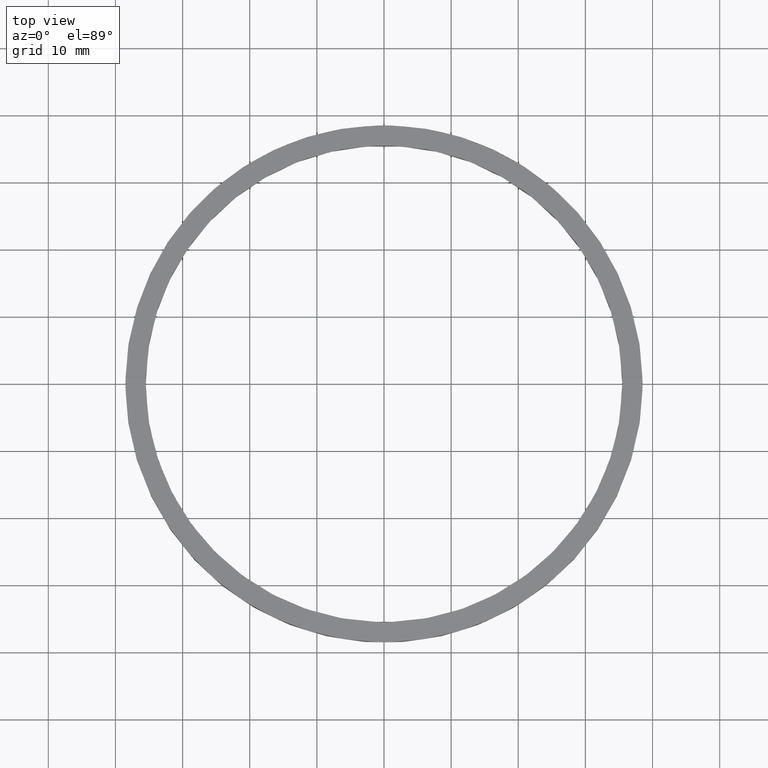
[diagram: clean part render]
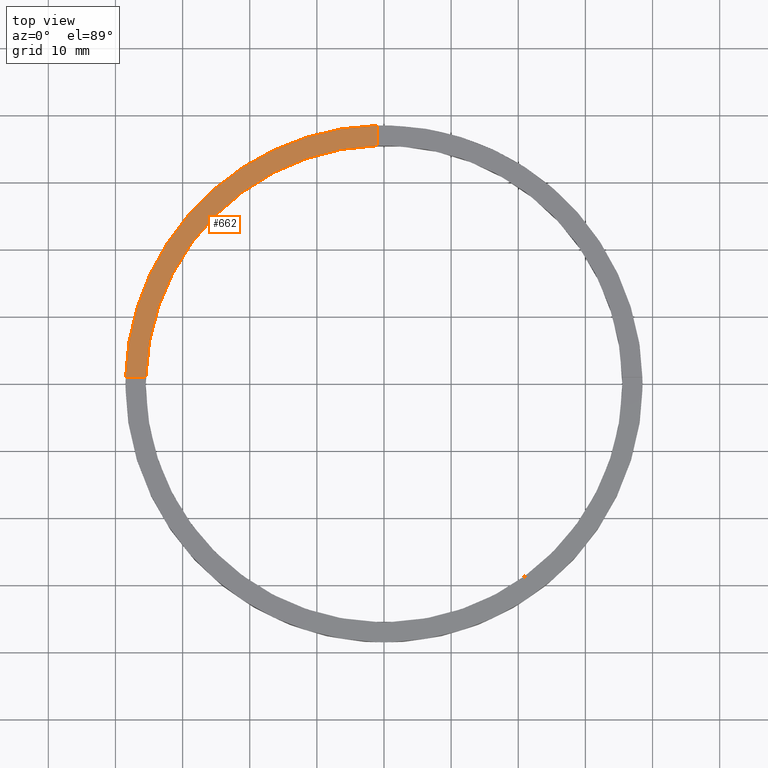
[diagram: same view with one face highlighted and labeled with its STEP entity id]
A machine part, top view. The second image highlights one B-rep face of the part: STEP entity #662.
In plain terms, the highlighted planar face has unit normal (0, 0, 1).
Its self-contained STEP definition (entity closure, byte-faithful):
#5 = CARTESIAN_POINT ( 'NONE',  ( 0.000000000000000000, 0.000000000000000000, 3.500000000000000000 ) ) ;
#7 = CARTESIAN_POINT ( 'NONE',  ( -28.50000000000018474, 0.9999999999999740208, 3.500000000000000000 ) ) ;
#30 = LINE ( 'NONE', #203, #31 ) ;
#31 = VECTOR ( 'NONE', #274, 1000.000000000000000 ) ;
#43 = CIRCLE ( 'NONE', #615, 35.50000000000000711 ) ;
#58 = DIRECTION ( 'NONE',  ( 0.000000000000000000, 0.000000000000000000, 1.000000000000000000 ) ) ;
#61 = FACE_OUTER_BOUND ( 'NONE', #719, .T. ) ;
#66 = CARTESIAN_POINT ( 'NONE',  ( 0.000000000000000000, 0.000000000000000000, 3.500000000000000000 ) ) ;
#126 = AXIS2_PLACEMENT_3D ( 'NONE', #169, #665, #428 ) ;
#132 = DIRECTION ( 'NONE',  ( 1.000000000000000000, 0.000000000000000000, -0.000000000000000000 ) ) ;
#134 = DIRECTION ( 'NONE',  ( 0.000000000000000000, 0.000000000000000000, 1.000000000000000000 ) ) ;
#141 = CARTESIAN_POINT ( 'NONE',  ( -38.48701079585163143, 0.9999999999999720224, 3.500000000000000000 ) ) ;
#169 = CARTESIAN_POINT ( 'NONE',  ( 0.000000000000000000, 0.000000000000000000, 3.500000000000000000 ) ) ;
#175 = VERTEX_POINT ( 'NONE', #310 ) ;
#195 = DIRECTION ( 'NONE',  ( 1.000000000000000000, 0.000000000000000000, 0.000000000000000000 ) ) ;
#203 = CARTESIAN_POINT ( 'NONE',  ( -1.000000000000025313, 28.49999999999999645, 3.500000000000000000 ) ) ;
#206 = ORIENTED_EDGE ( 'NONE', *, *, #685, .T. ) ;
#211 = EDGE_CURVE ( 'NONE', #175, #503, #30, .T. ) ;
#227 = EDGE_CURVE ( 'NONE', #503, #398, #43, .T. ) ;
#274 = DIRECTION ( 'NONE',  ( -0.000000000000000000, -1.000000000000000000, -0.000000000000000000 ) ) ;
#310 = CARTESIAN_POINT ( 'NONE',  ( -1.000000000000025313, 38.48701079585163143, 3.500000000000000000 ) ) ;
#349 = LINE ( 'NONE', #7, #607 ) ;
#391 = CARTESIAN_POINT ( 'NONE',  ( -35.48591269785801217, 0.9999999999999726885, 3.500000000000000000 ) ) ;
#398 = VERTEX_POINT ( 'NONE', #391 ) ;
#428 = DIRECTION ( 'NONE',  ( 1.000000000000000000, 0.000000000000000000, 0.000000000000000000 ) ) ;
#452 = VERTEX_POINT ( 'NONE', #141 ) ;
#470 = CARTESIAN_POINT ( 'NONE',  ( -1.000000000000025313, 35.48591269785801217, 3.500000000000000000 ) ) ;
#495 = ORIENTED_EDGE ( 'NONE', *, *, #227, .F. ) ;
#497 = AXIS2_PLACEMENT_3D ( 'NONE', #5, #58, #132 ) ;
#503 = VERTEX_POINT ( 'NONE', #470 ) ;
#508 = DIRECTION ( 'NONE',  ( -1.000000000000000000, -1.951563910473907735E-16, 0.000000000000000000 ) ) ;
#588 = CIRCLE ( 'NONE', #126, 38.50000000000000000 ) ;
#607 = VECTOR ( 'NONE', #508, 1000.000000000000000 ) ;
#615 = AXIS2_PLACEMENT_3D ( 'NONE', #66, #134, #195 ) ;
#620 = EDGE_CURVE ( 'NONE', #398, #452, #349, .T. ) ;
#662 = ADVANCED_FACE ( 'NONE', ( #61 ), #669, .T. ) ;
#665 = DIRECTION ( 'NONE',  ( 0.000000000000000000, 0.000000000000000000, 1.000000000000000000 ) ) ;
#669 = PLANE ( 'NONE',  #497 ) ;
#685 = EDGE_CURVE ( 'NONE', #175, #452, #588, .T. ) ;
#701 = ORIENTED_EDGE ( 'NONE', *, *, #620, .F. ) ;
#718 = ORIENTED_EDGE ( 'NONE', *, *, #211, .F. ) ;
#719 = EDGE_LOOP ( 'NONE', ( #718, #206, #701, #495 ) ) ;